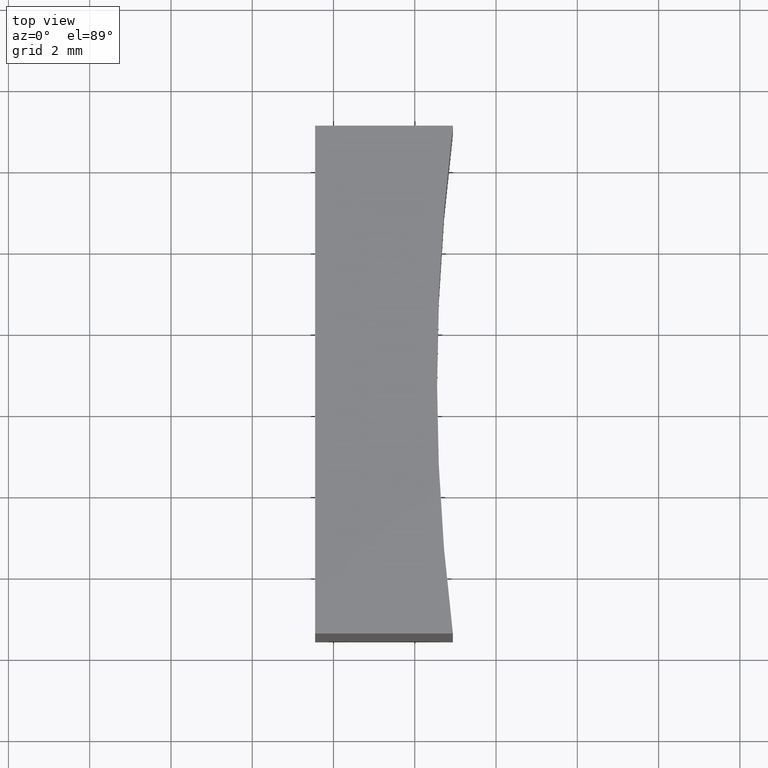
[diagram: clean part render]
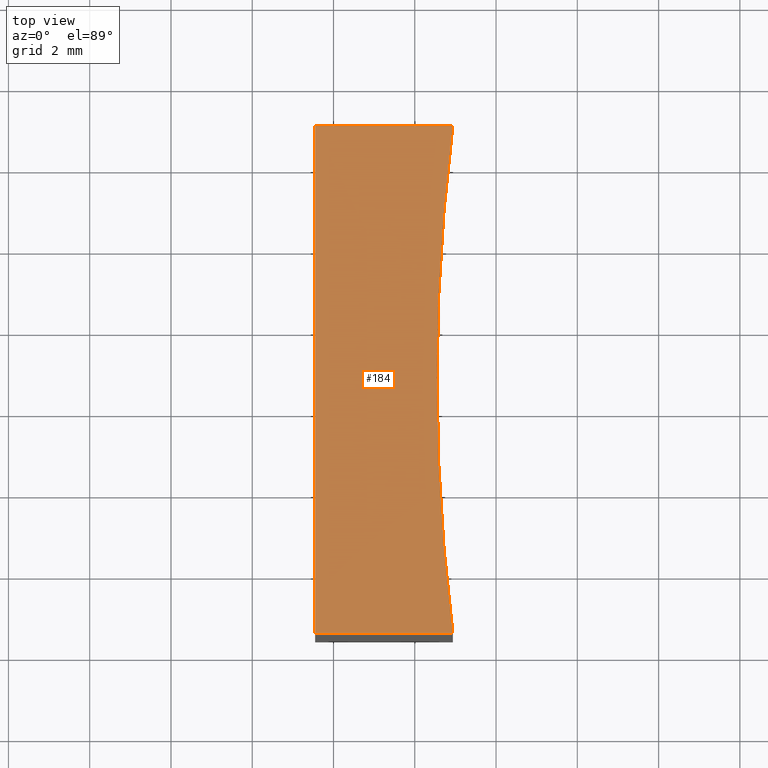
[diagram: same view with one face highlighted and labeled with its STEP entity id]
A machine part, top view. The second image highlights one B-rep face of the part: STEP entity #184.
In plain terms, the highlighted planar face has unit normal (0, 0, 1).
Its self-contained STEP definition (entity closure, byte-faithful):
#8 = CIRCLE ( 'NONE', #95, 49.99999999999998600 ) ;
#14 = CARTESIAN_POINT ( 'NONE',  ( 60.93849051950596200, 40.93901056168622400, 12.50000000000000000 ) ) ;
#15 = DIRECTION ( 'NONE',  ( 0.0000000000000000000, -1.000000000000000000, 0.0000000000000000000 ) ) ;
#17 = VECTOR ( 'NONE', #94, 1000.000000000000000 ) ;
#18 = EDGE_LOOP ( 'NONE', ( #110, #75, #194, #60, #97 ) ) ;
#30 = VERTEX_POINT ( 'NONE', #174 ) ;
#31 = EDGE_CURVE ( 'NONE', #30, #111, #107, .T. ) ;
#44 = AXIS2_PLACEMENT_3D ( 'NONE', #56, #89, #167 ) ;
#53 = LINE ( 'NONE', #102, #169 ) ;
#54 = VERTEX_POINT ( 'NONE', #62 ) ;
#56 = CARTESIAN_POINT ( 'NONE',  ( 110.5463276019670400, 34.68901056168623100, 12.50000000000000000 ) ) ;
#60 = ORIENTED_EDGE ( 'NONE', *, *, #77, .T. ) ;
#62 = CARTESIAN_POINT ( 'NONE',  ( 57.54632776745975800, 40.93901056168621700, 12.50000000000000000 ) ) ;
#64 = DIRECTION ( 'NONE',  ( 1.000000000000000000, 0.0000000000000000000, 0.0000000000000000000 ) ) ;
#75 = ORIENTED_EDGE ( 'NONE', *, *, #31, .T. ) ;
#77 = EDGE_CURVE ( 'NONE', #92, #181, #8, .T. ) ;
#85 = CARTESIAN_POINT ( 'NONE',  ( 110.5463276019670400, 34.68901056168623100, 12.50000000000000000 ) ) ;
#89 = DIRECTION ( 'NONE',  ( -0.0000000000000000000, -0.0000000000000000000, -1.000000000000000000 ) ) ;
#90 = EDGE_CURVE ( 'NONE', #181, #54, #53, .T. ) ;
#92 = VERTEX_POINT ( 'NONE', #120 ) ;
#94 = DIRECTION ( 'NONE',  ( 1.000000000000000000, 5.113915819429341200E-015, 0.0000000000000000000 ) ) ;
#95 = AXIS2_PLACEMENT_3D ( 'NONE', #85, #159, #64 ) ;
#96 = CARTESIAN_POINT ( 'NONE',  ( 57.54632776745975800, 28.43901056168622100, 12.50000000000000000 ) ) ;
#97 = ORIENTED_EDGE ( 'NONE', *, *, #90, .T. ) ;
#98 = DIRECTION ( 'NONE',  ( 0.0000000000000000000, 0.0000000000000000000, 1.000000000000000000 ) ) ;
#101 = CARTESIAN_POINT ( 'NONE',  ( 60.93849051950595500, 28.43901056168625600, 12.50000000000000000 ) ) ;
#102 = CARTESIAN_POINT ( 'NONE',  ( 57.54632776745975800, 40.93901056168621700, 12.50000000000000000 ) ) ;
#107 = LINE ( 'NONE', #96, #17 ) ;
#110 = ORIENTED_EDGE ( 'NONE', *, *, #166, .T. ) ;
#111 = VERTEX_POINT ( 'NONE', #101 ) ;
#117 = DIRECTION ( 'NONE',  ( 1.000000000000000000, 0.0000000000000000000, -0.0000000000000000000 ) ) ;
#120 = CARTESIAN_POINT ( 'NONE',  ( 60.54632760196703600, 34.68901056168623100, 12.50000000000000000 ) ) ;
#129 = AXIS2_PLACEMENT_3D ( 'NONE', #213, #98, #117 ) ;
#142 = VECTOR ( 'NONE', #15, 1000.000000000000000 ) ;
#159 = DIRECTION ( 'NONE',  ( -0.0000000000000000000, -0.0000000000000000000, -1.000000000000000000 ) ) ;
#166 = EDGE_CURVE ( 'NONE', #54, #30, #188, .T. ) ;
#167 = DIRECTION ( 'NONE',  ( 1.000000000000000000, 0.0000000000000000000, 0.0000000000000000000 ) ) ;
#169 = VECTOR ( 'NONE', #179, 1000.000000000000000 ) ;
#174 = CARTESIAN_POINT ( 'NONE',  ( 57.54632776745975800, 28.43901056168622100, 12.50000000000000000 ) ) ;
#179 = DIRECTION ( 'NONE',  ( -1.000000000000000000, -2.045566327771736600E-015, -0.0000000000000000000 ) ) ;
#181 = VERTEX_POINT ( 'NONE', #14 ) ;
#184 = ADVANCED_FACE ( 'NONE', ( #235 ), #230, .T. ) ;
#188 = LINE ( 'NONE', #202, #142 ) ;
#194 = ORIENTED_EDGE ( 'NONE', *, *, #229, .T. ) ;
#202 = CARTESIAN_POINT ( 'NONE',  ( 57.54632776745975800, 34.68901056168621700, 12.50000000000000000 ) ) ;
#212 = CIRCLE ( 'NONE', #44, 49.99999999999998600 ) ;
#213 = CARTESIAN_POINT ( 'NONE',  ( 110.5463276019670400, 34.68901056168623100, 12.50000000000000000 ) ) ;
#229 = EDGE_CURVE ( 'NONE', #111, #92, #212, .T. ) ;
#230 = PLANE ( 'NONE',  #129 ) ;
#235 = FACE_OUTER_BOUND ( 'NONE', #18, .T. ) ;